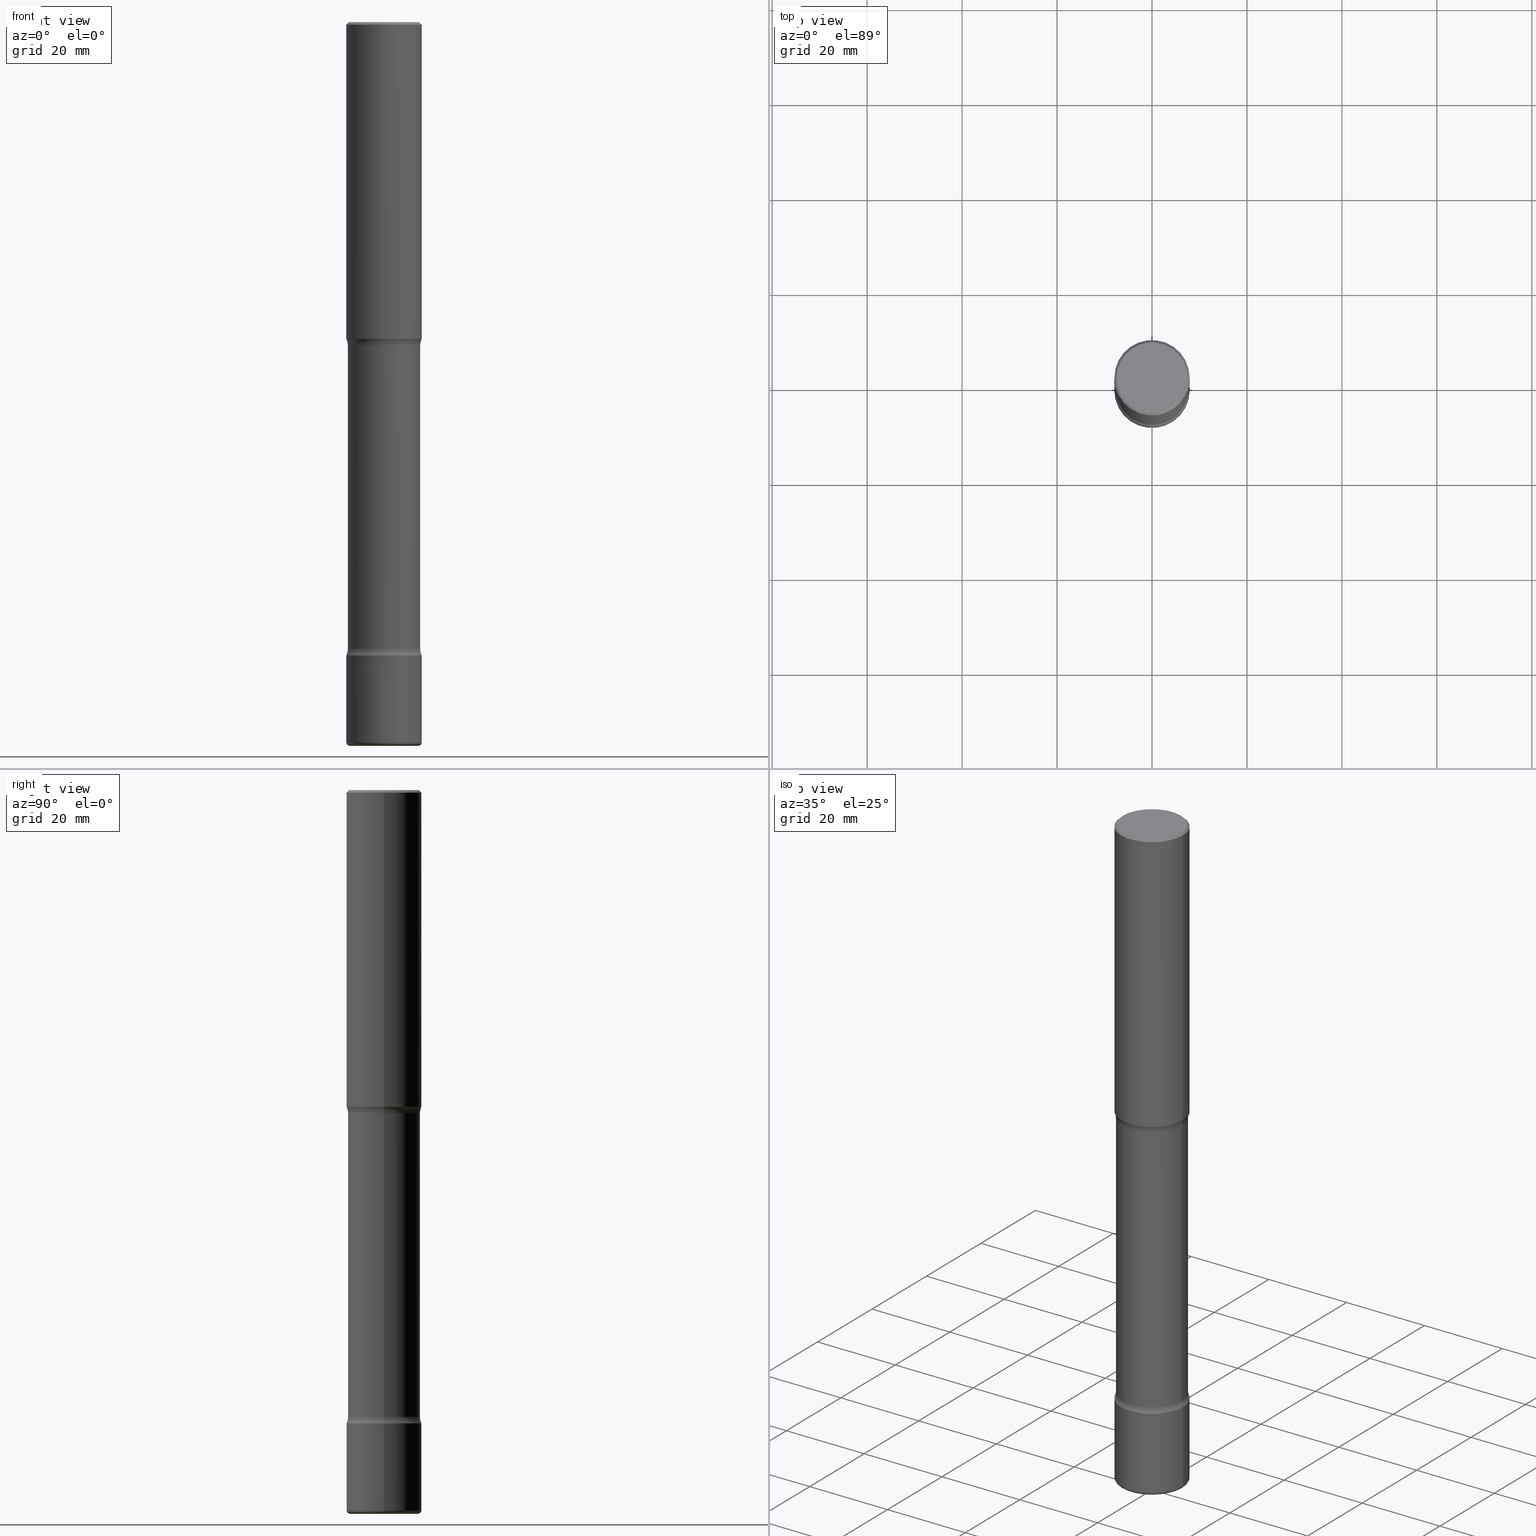
[diagram: canonical four-view strip — front | top / right | iso, engineering-drawing reading convention]
A machine part, canonical four-view strip (front | top / right | iso — engineering-drawing reading convention). The complete STEP part file that produces these views, byte-faithful:
ISO-10303-21;
HEADER;
FILE_DESCRIPTION (( 'STEP AP203' ),
    '1' );
FILE_NAME ('32851.STEP',
    '2023-03-11T07:07:10',
    ( '' ),
    ( '' ),
    'SwSTEP 2.0',
    'SolidWorks 2022',
    '' );
FILE_SCHEMA (( 'CONFIG_CONTROL_DESIGN' ));
ENDSEC;

DATA;
#1 = DIRECTION ( 'NONE',  ( 1.000000000000000000, -6.982962677686261189E-15, 0.000000000000000000 ) ) ;
#2 = VERTEX_POINT ( 'NONE', #332 ) ;
#3 = PERSON_AND_ORGANIZATION ( #345, #514 ) ;
#4 = FACE_OUTER_BOUND ( 'NONE', #72, .T. ) ;
#5 = CIRCLE ( 'NONE', #458, 0.3125000000000000000 ) ;
#6 = DIRECTION ( 'NONE',  ( -1.000000000000000000, 6.982962677686265133E-15, 0.000000000000000000 ) ) ;
#7 = ORIENTED_EDGE ( 'NONE', *, *, #466, .T. ) ;
#8 = AXIS2_PLACEMENT_3D ( 'NONE', #471, #27, #719 ) ;
#9 = LINE ( 'NONE', #701, #633 ) ;
#10 = DIRECTION ( 'NONE',  ( -2.445468806185136597E-29, 3.491481338843145583E-15, 1.000000000000000000 ) ) ;
#11 = CARTESIAN_POINT ( 'NONE',  ( 1.283871123247196489E-28, -1.833027702892651007E-14, -5.249999999999999112 ) ) ;
#12 = DIRECTION ( 'NONE',  ( -2.445468806185136877E-29, 3.491481338843145188E-15, 1.000000000000000000 ) ) ;
#13 = ORIENTED_EDGE ( 'NONE', *, *, #718, .F. ) ;
#14 = EDGE_CURVE ( 'NONE', #407, #409, #516, .T. ) ;
#15 = DIRECTION ( 'NONE',  ( 1.000000000000000000, -6.982962677686269077E-15, 4.883557194083113462E-29 ) ) ;
#16 = MANIFOLD_SOLID_BREP ( 'Body-Move/Copy2[1]', #746 ) ;
#17 = CIRCLE ( 'NONE', #200, 0.3125000000000000000 ) ;
#18 = EDGE_LOOP ( 'NONE', ( #640, #298, #682, #402 ) ) ;
#19 = FACE_OUTER_BOUND ( 'NONE', #482, .T. ) ;
#20 = AXIS2_PLACEMENT_3D ( 'NONE', #300, #128, #112 ) ;
#21 = APPROVAL_PERSON_ORGANIZATION ( #412, #773, #574 ) ;
#22 = PLANE ( 'NONE',  #203 ) ;
#23 = DIRECTION ( 'NONE',  ( -2.445468806185136597E-29, 3.491481338843145583E-15, 1.000000000000000000 ) ) ;
#24 = CC_DESIGN_DATE_AND_TIME_ASSIGNMENT ( #795, #498, ( #717 ) ) ;
#25 = LINE ( 'NONE', #93, #89 ) ;
#26 = EDGE_LOOP ( 'NONE', ( #368, #502 ) ) ;
#27 = DIRECTION ( 'NONE',  ( 2.438088387897960049E-29, -3.491481338843145188E-15, -1.000000000000000000 ) ) ;
#28 = EDGE_CURVE ( 'NONE', #50, #407, #171, .T. ) ;
#29 = DIRECTION ( 'NONE',  ( -1.000000000000000000, 6.982962677686265922E-15, -4.876176775795935793E-29 ) ) ;
#30 = AXIS2_PLACEMENT_3D ( 'NONE', #280, #534, #276 ) ;
#31 = CIRCLE ( 'NONE', #20, 0.3124999999999996669 ) ;
#32 = EDGE_LOOP ( 'NONE', ( #568, #7, #670, #382 ) ) ;
#33 = CARTESIAN_POINT ( 'NONE',  ( 1.465135667692520941E-28, -2.091825432278548311E-14, -5.991226156665199198 ) ) ;
#34 = VECTOR ( 'NONE', #156, 39.37007874015748143 ) ;
#35 = EDGE_CURVE ( 'NONE', #444, #220, #629, .T. ) ;
#36 = ORIENTED_EDGE ( 'NONE', *, *, #28, .F. ) ;
#37 = CARTESIAN_POINT ( 'NONE',  ( 0.4250000000000001554, -2.105575099898847407E-14, -5.195513763205741320 ) ) ;
#38 = EDGE_LOOP ( 'NONE', ( #13, #229, #121 ) ) ;
#39 = DIRECTION ( 'NONE',  ( -1.000000000000000000, 6.860497997771529985E-15, 0.000000000000000000 ) ) ;
#40 = MANIFOLD_SOLID_BREP ( 'Body-Move/Copy2[4]', #105 ) ;
#41 = AXIS2_PLACEMENT_3D ( 'NONE', #64, #509, #262 ) ;
#42 = CARTESIAN_POINT ( 'NONE',  ( 0.000000000000000000, 0.000000000000000000, 0.000000000000000000 ) ) ;
#43 = AXIS2_PLACEMENT_3D ( 'NONE', #266, #767, #564 ) ;
#44 = DIRECTION ( 'NONE',  ( 1.000000000000000000, -6.982962677686262766E-15, 0.000000000000000000 ) ) ;
#45 = ORIENTED_EDGE ( 'NONE', *, *, #656, .T. ) ;
#46 = ADVANCED_FACE ( 'NONE', ( #720 ), #376, .F. ) ;
#47 = CALENDAR_DATE ( 2023, 11, 3 ) ;
#48 = CARTESIAN_POINT ( 'NONE',  ( 6.552600008682760916E-29, -9.355376193454202673E-15, -2.679486236794259568 ) ) ;
#49 = EDGE_CURVE ( 'NONE', #589, #422, #327, .T. ) ;
#50 = VERTEX_POINT ( 'NONE', #193 ) ;
#51 = APPROVAL_STATUS ( 'not_yet_approved' ) ;
#52 = DIRECTION ( 'NONE',  ( 2.445468806185136597E-29, -3.491481338843145583E-15, -1.000000000000000000 ) ) ;
#53 = PERSON_AND_ORGANIZATION ( #345, #514 ) ;
#54 = AXIS2_PLACEMENT_3D ( 'NONE', #319, #202, #83 ) ;
#55 = CARTESIAN_POINT ( 'NONE',  ( -0.4250000000000001554, -1.512023272295514421E-14, -5.195513763205741320 ) ) ;
#56 = AXIS2_PLACEMENT_3D ( 'NONE', #646, #131, #561 ) ;
#57 = DATE_AND_TIME ( #619, #365 ) ;
#58 = LINE ( 'NONE', #678, #117 ) ;
#59 = ORIENTED_EDGE ( 'NONE', *, *, #49, .F. ) ;
#60 = DIRECTION ( 'NONE',  ( 2.445468806185136597E-29, -3.491481338843145583E-15, -1.000000000000000000 ) ) ;
#61 = ORIENTED_EDGE ( 'NONE', *, *, #324, .F. ) ;
#62 = DIRECTION ( 'NONE',  ( 0.000000000000000000, 0.000000000000000000, 1.000000000000000000 ) ) ;
#63 = CARTESIAN_POINT ( 'NONE',  ( 0.2824999999999999734, -2.292157498950524274E-14, -6.000000000000000888 ) ) ;
#64 = CARTESIAN_POINT ( 'NONE',  ( 2.565804704681639699E-28, 2.774148849737446454E-17, -5.249999999999999112 ) ) ;
#65 = EDGE_LOOP ( 'NONE', ( #673, #769, #626, #337 ) ) ;
#66 = ORIENTED_EDGE ( 'NONE', *, *, #180, .T. ) ;
#67 = DIRECTION ( 'NONE',  ( -1.000000000000000000, 6.982962677686266711E-15, 0.000000000000000000 ) ) ;
#68 = AXIS2_PLACEMENT_3D ( 'NONE', #48, #237, #151 ) ;
#69 = CIRCLE ( 'NONE', #778, 0.03000000000000029379 ) ;
#70 = CARTESIAN_POINT ( 'NONE',  ( -0.3125000000000000000, -6.944692465212945898E-15, -2.625000000000000444 ) ) ;
#71 = CIRCLE ( 'NONE', #417, 0.3125000000000000000 ) ;
#72 = EDGE_LOOP ( 'NONE', ( #301, #155, #306, #78 ) ) ;
#73 = VERTEX_POINT ( 'NONE', #70 ) ;
#74 = CC_DESIGN_PERSON_AND_ORGANIZATION_ASSIGNMENT ( #358, #735, ( #538 ) ) ;
#75 = DIRECTION ( 'NONE',  ( -0.9993908270190957621, 6.856857904024560415E-15, -0.03489949670249996999 ) ) ;
#76 = ORIENTED_EDGE ( 'NONE', *, *, #14, .F. ) ;
#77 = CYLINDRICAL_SURFACE ( 'NONE', #254, 0.3125000000000000000 ) ;
#78 = ORIENTED_EDGE ( 'NONE', *, *, #750, .F. ) ;
#79 = ORIENTED_EDGE ( 'NONE', *, *, #324, .T. ) ;
#80 = ORIENTED_EDGE ( 'NONE', *, *, #278, .F. ) ;
#81 = FACE_OUTER_BOUND ( 'NONE', #38, .T. ) ;
#82 = EDGE_CURVE ( 'NONE', #638, #508, #17, .T. ) ;
#83 = DIRECTION ( 'NONE',  ( 1.000000000000000000, -6.982962677686266711E-15, 4.876176775795936353E-29 ) ) ;
#84 = CARTESIAN_POINT ( 'NONE',  ( 0.3124999999999999445, -2.047418265323011053E-14, -5.249999999999999112 ) ) ;
#85 = CC_DESIGN_DATE_AND_TIME_ASSIGNMENT ( #478, #247, ( #392 ) ) ;
#86 = VECTOR ( 'NONE', #755, 39.37007874015748143 ) ;
#87 = ORIENTED_EDGE ( 'NONE', *, *, #597, .T. ) ;
#88 = DIRECTION ( 'NONE',  ( 1.000000000000000000, -6.982962677686265922E-15, 4.876176775795935793E-29 ) ) ;
#89 = VECTOR ( 'NONE', #582, 39.37007874015748143 ) ;
#90 = ORIENTED_EDGE ( 'NONE', *, *, #271, .F. ) ;
#91 = AXIS2_PLACEMENT_3D ( 'NONE', #554, #62, #483 ) ;
#92 = COORDINATED_UNIVERSAL_TIME_OFFSET ( 5, 0, .BEHIND. ) ;
#93 = CARTESIAN_POINT ( 'NONE',  ( 0.3000000000000000999, -1.126002731776913978E-14, -2.625000000000000444 ) ) ;
#94 = CARTESIAN_POINT ( 'NONE',  ( 0.000000000000000000, 0.000000000000000000, 0.000000000000000000 ) ) ;
#95 = DIRECTION ( 'NONE',  ( 2.445468806185136597E-29, -3.491481338843145583E-15, -1.000000000000000000 ) ) ;
#96 = CARTESIAN_POINT ( 'NONE',  ( 0.3125000000000000000, -1.130904413876686180E-14, -2.625000000000000444 ) ) ;
#97 = ORIENTED_EDGE ( 'NONE', *, *, #141, .T. ) ;
#98 = DIRECTION ( 'NONE',  ( -1.000000000000000000, 6.982962677686267499E-15, -4.883557194083113462E-29 ) ) ;
#99 = TOROIDAL_SURFACE ( 'NONE', #391, 0.4249999999999998224, 0.1249999999999999584 ) ;
#100 = CARTESIAN_POINT ( 'NONE',  ( 1.270546684002518978E-28, -1.814003934993557190E-14, -5.195513763205741320 ) ) ;
#101 = EDGE_CURVE ( 'NONE', #73, #617, #762, .T. ) ;
#102 = CARTESIAN_POINT ( 'NONE',  ( 1.109296561330329656E-27, -1.583781495528305936E-13, -45.36130489682268063 ) ) ;
#103 = DIRECTION ( 'NONE',  ( -2.445468806185136597E-29, 3.491481338843145583E-15, 1.000000000000000000 ) ) ;
#104 = DIRECTION ( 'NONE',  ( 1.000000000000000000, -6.982962677686262766E-15, 0.000000000000000000 ) ) ;
#105 = CLOSED_SHELL ( 'NONE', ( #802, #722, #765, #493, #782, #149, #581, #194 ) ) ;
#106 = AXIS2_PLACEMENT_3D ( 'NONE', #137, #631, #644 ) ;
#107 = AXIS2_PLACEMENT_3D ( 'NONE', #652, #207, #397 ) ;
#108 = DIRECTION ( 'NONE',  ( 1.000000000000000000, -6.982962677686263555E-15, 0.000000000000000000 ) ) ;
#109 = CONICAL_SURFACE ( 'NONE', #706, 0.3124999999999996669, 0.7853981633974479459 ) ;
#110 = VERTEX_POINT ( 'NONE', #182 ) ;
#111 = PERSON_AND_ORGANIZATION_ROLE ( 'creator' ) ;
#112 = DIRECTION ( 'NONE',  ( 1.000000000000000000, -6.982962677686266711E-15, 0.000000000000000000 ) ) ;
#113 = EDGE_LOOP ( 'NONE', ( #287, #190 ) ) ;
#114 = DIRECTION ( 'NONE',  ( 2.445468806185136877E-29, -3.491481338843145188E-15, -1.000000000000000000 ) ) ;
#115 = CIRCLE ( 'NONE', #535, 0.3000000000000002109 ) ;
#116 = CARTESIAN_POINT ( 'NONE',  ( 6.552600008682760916E-29, -9.355376193454202673E-15, -2.679486236794259568 ) ) ;
#117 = VECTOR ( 'NONE', #371, 39.37007874015748143 ) ;
#118 = CIRCLE ( 'NONE', #228, 0.3125000000000000000 ) ;
#119 = DIRECTION ( 'NONE',  ( -2.445468806185136877E-29, 3.491481338843145188E-15, 1.000000000000000000 ) ) ;
#120 = ADVANCED_FACE ( 'NONE', ( #19 ), #367, .T. ) ;
#121 = ORIENTED_EDGE ( 'NONE', *, *, #154, .F. ) ;
#122 = DIRECTION ( 'NONE',  ( -1.000000000000000000, 7.105427357601006592E-15, 0.000000000000000000 ) ) ;
#123 = EDGE_LOOP ( 'NONE', ( #357, #331, #794, #435 ) ) ;
#124 = COORDINATED_UNIVERSAL_TIME_OFFSET ( 5, 0, .BEHIND. ) ;
#125 = DIRECTION ( 'NONE',  ( 7.105427357601001859E-15, 1.000000000000000000, -3.491481338843145583E-15 ) ) ;
#126 = ORIENTED_EDGE ( 'NONE', *, *, #211, .T. ) ;
#127 = DIRECTION ( 'NONE',  ( -2.445468806185136597E-29, 3.491481338843145583E-15, 1.000000000000000000 ) ) ;
#128 = DIRECTION ( 'NONE',  ( -2.445468806185136597E-29, 3.491481338843145583E-15, 1.000000000000000000 ) ) ;
#129 = PLANE ( 'NONE',  #730 ) ;
#130 = VERTEX_POINT ( 'NONE', #501 ) ;
#131 = DIRECTION ( 'NONE',  ( -2.445468806185136597E-29, 3.491481338843145583E-15, 1.000000000000000000 ) ) ;
#132 = AXIS2_PLACEMENT_3D ( 'NONE', #389, #789, #88 ) ;
#133 = CIRCLE ( 'NONE', #290, 0.3125000000000000000 ) ;
#134 = CARTESIAN_POINT ( 'NONE',  ( -0.2999999999999999334, -7.260487390148322660E-15, -2.679486236794259568 ) ) ;
#135 = CIRCLE ( 'NONE', #596, 0.03000000000000029379 ) ;
#136 = FACE_OUTER_BOUND ( 'NONE', #198, .T. ) ;
#137 = CARTESIAN_POINT ( 'NONE',  ( -0.4250000000000001554, -1.517228021191890539E-14, -5.195513763205741320 ) ) ;
#138 = VERTEX_POINT ( 'NONE', #429 ) ;
#139 = CC_DESIGN_PERSON_AND_ORGANIZATION_ASSIGNMENT ( #423, #111, ( #392 ) ) ;
#140 = DIRECTION ( 'NONE',  ( -2.438088387897960049E-29, 3.491481338843145188E-15, 1.000000000000000000 ) ) ;
#141 = EDGE_CURVE ( 'NONE', #246, #444, #403, .T. ) ;
#142 = FACE_OUTER_BOUND ( 'NONE', #258, .T. ) ;
#143 = VERTEX_POINT ( 'NONE', #436 ) ;
#144 = ORIENTED_EDGE ( 'NONE', *, *, #427, .F. ) ;
#145 = FACE_OUTER_BOUND ( 'NONE', #419, .T. ) ;
#146 = AXIS2_PLACEMENT_3D ( 'NONE', #567, #386, #122 ) ;
#147 = DIRECTION ( 'NONE',  ( 2.445468806185136597E-29, -3.491481338843145583E-15, -1.000000000000000000 ) ) ;
#148 = AXIS2_PLACEMENT_3D ( 'NONE', #116, #361, #613 ) ;
#149 = ADVANCED_FACE ( 'NONE', ( #553 ), #129, .F. ) ;
#150 = DIRECTION ( 'NONE',  ( 1.000000000000000000, -6.982962677686266711E-15, 4.876067333457696203E-29 ) ) ;
#151 = DIRECTION ( 'NONE',  ( 1.000000000000000000, -6.982962677686269866E-15, 0.000000000000000000 ) ) ;
#152 = CARTESIAN_POINT ( 'NONE',  ( 0.3000000000000000999, -2.297640372211694384E-14, -5.991226156665199198 ) ) ;
#153 = ORIENTED_EDGE ( 'NONE', *, *, #707, .F. ) ;
#154 = EDGE_CURVE ( 'NONE', #143, #167, #614, .T. ) ;
#155 = ORIENTED_EDGE ( 'NONE', *, *, #356, .T. ) ;
#156 = DIRECTION ( 'NONE',  ( 0.9993908270190957621, -6.978169709227537544E-15, -0.03489949670249996999 ) ) ;
#157 = ORIENTED_EDGE ( 'NONE', *, *, #565, .T. ) ;
#158 = CIRCLE ( 'NONE', #662, 0.1249999999999999584 ) ;
#159 = PRODUCT_DEFINITION_FORMATION_WITH_SPECIFIED_SOURCE ( 'ANY', '', #538, .NOT_KNOWN. ) ;
#160 = EDGE_LOOP ( 'NONE', ( #506, #584, #418, #153 ) ) ;
#161 = DIRECTION ( 'NONE',  ( 1.000000000000000000, -6.982962677686262766E-15, 0.000000000000000000 ) ) ;
#162 = EDGE_CURVE ( 'NONE', #422, #453, #712, .T. ) ;
#163 = EDGE_LOOP ( 'NONE', ( #751, #703, #645, #233 ) ) ;
#164 = CYLINDRICAL_SURFACE ( 'NONE', #547, 0.3000000000000000999 ) ;
#165 = ADVANCED_FACE ( 'NONE', ( #270 ), #317, .F. ) ;
#166 = CARTESIAN_POINT ( 'NONE',  ( 2.042516583223230173E-15, 0.2924999999999995937, -1.016989779121518407E-15 ) ) ;
#167 = VERTEX_POINT ( 'NONE', #505 ) ;
#168 = ORIENTED_EDGE ( 'NONE', *, *, #278, .T. ) ;
#169 = DIRECTION ( 'NONE',  ( -2.445468806185136597E-29, 3.491481338843145583E-15, 1.000000000000000000 ) ) ;
#170 = CARTESIAN_POINT ( 'NONE',  ( 6.419355616235984688E-29, -9.165138514463258190E-15, -2.625000000000000444 ) ) ;
#171 = CIRCLE ( 'NONE', #590, 0.3125000000000000000 ) ;
#172 = EDGE_LOOP ( 'NONE', ( #61, #80 ) ) ;
#173 =( NAMED_UNIT ( * ) SI_UNIT ( $, .STERADIAN. ) SOLID_ANGLE_UNIT ( ) );
#174 = AXIS2_PLACEMENT_3D ( 'NONE', #396, #261, #320 ) ;
#175 = LINE ( 'NONE', #442, #497 ) ;
#176 = APPLICATION_PROTOCOL_DEFINITION ( 'international standard', 'config_control_design', 1994, #580 ) ;
#177 = DIRECTION ( 'NONE',  ( -2.445468806185136597E-29, 3.491481338843145583E-15, 1.000000000000000000 ) ) ;
#178 = PRODUCT_DEFINITION_SHAPE ( 'NONE', 'NONE',  #392 ) ;
#179 = EDGE_LOOP ( 'NONE', ( #208, #494, #380 ) ) ;
#180 = EDGE_CURVE ( 'NONE', #50, #570, #759, .T. ) ;
#181 = CARTESIAN_POINT ( 'NONE',  ( 0.3124999999999998890, -2.182175836776957558E-15, 1.523805242436229235E-29 ) ) ;
#182 = CARTESIAN_POINT ( 'NONE',  ( -0.2824999999999999734, -1.878265117408992885E-14, -6.000000000000000888 ) ) ;
#183 = ORIENTED_EDGE ( 'NONE', *, *, #466, .F. ) ;
#184 = PERSON_AND_ORGANIZATION ( #345, #514 ) ;
#185 = CIRCLE ( 'NONE', #30, 0.3124999999999996669 ) ;
#186 = CARTESIAN_POINT ( 'NONE',  ( -0.4249999999999998224, -6.387617055437540110E-15, -2.679486236794259568 ) ) ;
#187 = AXIS2_PLACEMENT_3D ( 'NONE', #643, #521, #150 ) ;
#188 = AXIS2_PLACEMENT_3D ( 'NONE', #658, #401, #98 ) ;
#189 = ORIENTED_EDGE ( 'NONE', *, *, #14, .T. ) ;
#190 = ORIENTED_EDGE ( 'NONE', *, *, #82, .F. ) ;
#191 = CARTESIAN_POINT ( 'NONE',  ( 0.3124999999999999445, -2.051245286570346684E-14, -5.249999999999999112 ) ) ;
#192 = CARTESIAN_POINT ( 'NONE',  ( 0.3000000000000002109, -2.023492815324145191E-14, -5.195513763205741320 ) ) ;
#193 = CARTESIAN_POINT ( 'NONE',  ( -0.3125000000000001665, -1.862369754364326626E-14, -5.969999999999999751 ) ) ;
#194 = ADVANCED_FACE ( 'NONE', ( #622 ), #681, .T. ) ;
#195 = ORIENTED_EDGE ( 'NONE', *, *, #723, .F. ) ;
#196 = CARTESIAN_POINT ( 'NONE',  ( -0.3125000000000000000, -2.397038021369746085E-15, -2.625000000000000444 ) ) ;
#197 = DIRECTION ( 'NONE',  ( -2.445468806185136597E-29, 3.491481338843145583E-15, 1.000000000000000000 ) ) ;
#198 = EDGE_LOOP ( 'NONE', ( #558, #90 ) ) ;
#199 = CARTESIAN_POINT ( 'NONE',  ( 1.270546684002518978E-28, -1.814003934993557190E-14, -5.195513763205741320 ) ) ;
#200 = AXIS2_PLACEMENT_3D ( 'NONE', #312, #197, #321 ) ;
#201 = AXIS2_PLACEMENT_3D ( 'NONE', #215, #462, #273 ) ;
#202 = DIRECTION ( 'NONE',  ( -2.445468806185136597E-29, 3.491481338843145583E-15, 1.000000000000000000 ) ) ;
#203 = AXIS2_PLACEMENT_3D ( 'NONE', #206, #140, #696 ) ;
#204 = APPROVAL ( #51, 'UNSPECIFIED' ) ;
#205 = CALENDAR_DATE ( 2023, 11, 3 ) ;
#206 = CARTESIAN_POINT ( 'NONE',  ( 1.467281283711081958E-28, -2.094888803305887271E-14, -6.000000000000000888 ) ) ;
#207 = DIRECTION ( 'NONE',  ( -2.445468806185136597E-29, 3.491481338843145583E-15, 1.000000000000000000 ) ) ;
#208 = ORIENTED_EDGE ( 'NONE', *, *, #503, .F. ) ;
#209 = ORIENTED_EDGE ( 'NONE', *, *, #750, .T. ) ;
#210 = DIRECTION ( 'NONE',  ( -2.445468806185136597E-29, 3.491481338843145583E-15, 1.000000000000000000 ) ) ;
#211 = EDGE_CURVE ( 'NONE', #2, #333, #377, .T. ) ;
#212 = PLANE ( 'NONE',  #132 ) ;
#213 = ORIENTED_EDGE ( 'NONE', *, *, #642, .T. ) ;
#214 = CARTESIAN_POINT ( 'NONE',  ( 6.552600008682760916E-29, -9.355376193454202673E-15, -2.679486236794259568 ) ) ;
#215 = CARTESIAN_POINT ( 'NONE',  ( 1.270546684002518978E-28, -1.814003934993557190E-14, -5.195513763205741320 ) ) ;
#216 = CC_DESIGN_SECURITY_CLASSIFICATION ( #717, ( #159 ) ) ;
#217 = DIRECTION ( 'NONE',  ( -1.000000000000000000, 6.982962677686265922E-15, 0.000000000000000000 ) ) ;
#218 = CC_DESIGN_PERSON_AND_ORGANIZATION_ASSIGNMENT ( #53, #543, ( #159 ) ) ;
#219 = CARTESIAN_POINT ( 'NONE',  ( 1.270546684002518978E-28, -1.814003934993557190E-14, -5.195513763205741320 ) ) ;
#220 = VERTEX_POINT ( 'NONE', #191 ) ;
#221 = DIRECTION ( 'NONE',  ( 1.000000000000000000, -6.982962677686199657E-15, 0.000000000000000000 ) ) ;
#222 = ORIENTED_EDGE ( 'NONE', *, *, #519, .F. ) ;
#223 = VERTEX_POINT ( 'NONE', #134 ) ;
#224 = DIRECTION ( 'NONE',  ( 1.000000000000000000, -6.982962677686262766E-15, 0.000000000000000000 ) ) ;
#225 = ADVANCED_FACE ( 'NONE', ( #763 ), #77, .T. ) ;
#226 = AXIS2_PLACEMENT_3D ( 'NONE', #739, #685, #753 ) ;
#227 = EDGE_CURVE ( 'NONE', #246, #617, #625, .T. ) ;
#228 = AXIS2_PLACEMENT_3D ( 'NONE', #539, #169, #665 ) ;
#229 = ORIENTED_EDGE ( 'NONE', *, *, #503, .T. ) ;
#230 = DIRECTION ( 'NONE',  ( -2.445468806185136597E-29, 3.491481338843145583E-15, 1.000000000000000000 ) ) ;
#231 = CARTESIAN_POINT ( 'NONE',  ( 1.467281283711081958E-28, -2.094888803305887271E-14, -6.000000000000000888 ) ) ;
#232 = EDGE_CURVE ( 'NONE', #444, #246, #115, .T. ) ;
#233 = ORIENTED_EDGE ( 'NONE', *, *, #649, .F. ) ;
#234 = ORIENTED_EDGE ( 'NONE', *, *, #734, .F. ) ;
#235 = ORIENTED_EDGE ( 'NONE', *, *, #740, .T. ) ;
#236 = DIRECTION ( 'NONE',  ( -1.000000000000000000, 6.982962677686262766E-15, 0.000000000000000000 ) ) ;
#237 = DIRECTION ( 'NONE',  ( -2.445468806185136597E-29, 3.491481338843145583E-15, 1.000000000000000000 ) ) ;
#238 = ADVANCED_FACE ( 'NONE', ( #413 ), #725, .F. ) ;
#239 = DESIGN_CONTEXT ( 'detailed design', #715, 'design' ) ;
#240 = FACE_OUTER_BOUND ( 'NONE', #624, .T. ) ;
#241 = EDGE_LOOP ( 'NONE', ( #756, #235, #353, #59 ) ) ;
#242 = CIRCLE ( 'NONE', #608, 0.3125000000000000000 ) ;
#243 = CYLINDRICAL_SURFACE ( 'NONE', #680, 0.3000000000000000999 ) ;
#244 = VECTOR ( 'NONE', #114, 39.37007874015748143 ) ;
#245 = EDGE_CURVE ( 'NONE', #430, #666, #185, .T. ) ;
#246 = VERTEX_POINT ( 'NONE', #355 ) ;
#247 = DATE_TIME_ROLE ( 'creation_date' ) ;
#248 = ADVANCED_FACE ( 'NONE', ( #472 ), #212, .T. ) ;
#249 = CARTESIAN_POINT ( 'NONE',  ( 6.552600008682760916E-29, -9.355376193454202673E-15, -2.679486236794259568 ) ) ;
#250 = DIRECTION ( 'NONE',  ( -2.445468806185136597E-29, 3.491481338843145583E-15, 1.000000000000000000 ) ) ;
#251 = DIRECTION ( 'NONE',  ( -2.438088387897960049E-29, 3.491481338843145188E-15, 1.000000000000000000 ) ) ;
#252 = APPROVAL_DATE_TIME ( #307, #517 ) ;
#253 = PRODUCT_RELATED_PRODUCT_CATEGORY ( 'detail', '', ( #538 ) ) ;
#254 = AXIS2_PLACEMENT_3D ( 'NONE', #686, #127, #372 ) ;
#255 = DIMENSIONAL_EXPONENTS ( 1.000000000000000000, 0.000000000000000000, 0.000000000000000000, 0.000000000000000000, 0.000000000000000000, 0.000000000000000000, 0.000000000000000000 ) ;
#256 = DIRECTION ( 'NONE',  ( 1.000000000000000000, -6.982962677686269077E-15, 4.883557194083113462E-29 ) ) ;
#257 = TOROIDAL_SURFACE ( 'NONE', #188, 0.4250000000000001554, 0.1250000000000000000 ) ;
#258 = EDGE_LOOP ( 'NONE', ( #425, #311, #168, #470 ) ) ;
#259 = DIRECTION ( 'NONE',  ( 2.445468806185136597E-29, -3.491481338843145583E-15, -1.000000000000000000 ) ) ;
#260 = ORIENTED_EDGE ( 'NONE', *, *, #227, .F. ) ;
#261 = DIRECTION ( 'NONE',  ( -2.445468806185136597E-29, 3.491481338843145583E-15, 1.000000000000000000 ) ) ;
#262 = DIRECTION ( 'NONE',  ( -1.000000000000000000, 6.982962677686265922E-15, -4.876176775795935793E-29 ) ) ;
#263 = DIRECTION ( 'NONE',  ( 2.445468806185136597E-29, -3.491481338843145583E-15, -1.000000000000000000 ) ) ;
#264 = CARTESIAN_POINT ( 'NONE',  ( 1.465135667692520941E-28, -2.091825432278548311E-14, -5.991226156665199198 ) ) ;
#265 = APPROVAL_STATUS ( 'not_yet_approved' ) ;
#266 = CARTESIAN_POINT ( 'NONE',  ( 0.4249999999999998224, -1.232313533147086445E-14, -2.679486236794259568 ) ) ;
#267 = AXIS2_PLACEMENT_3D ( 'NONE', #323, #10, #1 ) ;
#268 = TOROIDAL_SURFACE ( 'NONE', #416, 0.4249999999999998224, 0.1249999999999999584 ) ;
#269 = LOCAL_TIME ( 2, 7, 10.00000000000000000, #743 ) ;
#270 = FACE_OUTER_BOUND ( 'NONE', #653, .T. ) ;
#271 = EDGE_CURVE ( 'NONE', #110, #375, #350, .T. ) ;
#272 = FACE_OUTER_BOUND ( 'NONE', #163, .T. ) ;
#273 = DIRECTION ( 'NONE',  ( 1.000000000000000000, -6.982962677686263555E-15, 4.883557194083111780E-29 ) ) ;
#274 = FACE_OUTER_BOUND ( 'NONE', #573, .T. ) ;
#275 = ORIENTED_EDGE ( 'NONE', *, *, #476, .F. ) ;
#276 = DIRECTION ( 'NONE',  ( 1.000000000000000000, -6.982962677686266711E-15, 0.000000000000000000 ) ) ;
#277 = EDGE_CURVE ( 'NONE', #333, #2, #777, .T. ) ;
#278 = EDGE_CURVE ( 'NONE', #138, #220, #5, .T. ) ;
#279 = DIRECTION ( 'NONE',  ( 1.000000000000000000, -6.982962677686266711E-15, 4.876176775795935232E-29 ) ) ;
#280 = CARTESIAN_POINT ( 'NONE',  ( 4.890937612370289799E-31, -6.982962677686315028E-17, -0.02000000000000006981 ) ) ;
#281 = EDGE_CURVE ( 'NONE', #167, #143, #593, .T. ) ;
#282 = CIRCLE ( 'NONE', #148, 0.2999999999999999334 ) ;
#283 = AXIS2_PLACEMENT_3D ( 'NONE', #348, #230, #161 ) ;
#284 = FACE_OUTER_BOUND ( 'NONE', #454, .T. ) ;
#285 = DIRECTION ( 'NONE',  ( -1.000000000000000000, 6.982962677686266711E-15, 0.000000000000000000 ) ) ;
#286 = EDGE_CURVE ( 'NONE', #617, #342, #415, .T. ) ;
#287 = ORIENTED_EDGE ( 'NONE', *, *, #455, .F. ) ;
#288 = CARTESIAN_POINT ( 'NONE',  ( 0.2824999999999999734, -2.281683054933994621E-14, -5.969999999999999751 ) ) ;
#289 = AXIS2_PLACEMENT_3D ( 'NONE', #231, #671, #108 ) ;
#290 = AXIS2_PLACEMENT_3D ( 'NONE', #378, #210, #636 ) ;
#291 = CC_DESIGN_APPROVAL ( #773, ( #717 ) ) ;
#292 = DIRECTION ( 'NONE',  ( 2.445468806185136597E-29, -3.491481338843145583E-15, -1.000000000000000000 ) ) ;
#293 = CARTESIAN_POINT ( 'NONE',  ( -0.2824999999999999734, -1.883686036437129492E-14, -5.969999999999999751 ) ) ;
#294 = ADVANCED_FACE ( 'NONE', ( #768 ), #647, .T. ) ;
#295 = ORIENTED_EDGE ( 'NONE', *, *, #723, .T. ) ;
#296 = CALENDAR_DATE ( 2023, 11, 3 ) ;
#297 = FACE_OUTER_BOUND ( 'NONE', #510, .T. ) ;
#298 = ORIENTED_EDGE ( 'NONE', *, *, #571, .T. ) ;
#299 = PERSON_AND_ORGANIZATION ( #345, #514 ) ;
#300 = CARTESIAN_POINT ( 'NONE',  ( 4.890937612370289799E-31, -6.982962677686315028E-17, -0.02000000000000006981 ) ) ;
#301 = ORIENTED_EDGE ( 'NONE', *, *, #604, .T. ) ;
#302 = ADVANCED_FACE ( 'NONE', ( #721 ), #475, .F. ) ;
#303 = AXIS2_PLACEMENT_3D ( 'NONE', #440, #177, #424 ) ;
#304 = CIRCLE ( 'NONE', #788, 0.2999999999999999334 ) ;
#305 = DIRECTION ( 'NONE',  ( -2.445468806185136597E-29, 3.491481338843145583E-15, 1.000000000000000000 ) ) ;
#306 = ORIENTED_EDGE ( 'NONE', *, *, #709, .F. ) ;
#307 = DATE_AND_TIME ( #296, #269 ) ;
#308 = CARTESIAN_POINT ( 'NONE',  ( 0.3000000000000002109, -2.033618570124857473E-14, -5.195513763205741320 ) ) ;
#309 = DIRECTION ( 'NONE',  ( -2.445468806185136597E-29, 3.491481338843145583E-15, 1.000000000000000000 ) ) ;
#310 = CC_DESIGN_PERSON_AND_ORGANIZATION_ASSIGNMENT ( #184, #433, ( #717 ) ) ;
#311 = ORIENTED_EDGE ( 'NONE', *, *, #427, .T. ) ;
#312 = CARTESIAN_POINT ( 'NONE',  ( 6.419355616235984688E-29, -9.165138514463258190E-15, -2.625000000000000444 ) ) ;
#313 = ORIENTED_EDGE ( 'NONE', *, *, #571, .F. ) ;
#314 =( LENGTH_UNIT ( ) NAMED_UNIT ( * ) SI_UNIT ( $, .METRE. ) );
#315 = ADVANCED_FACE ( 'NONE', ( #452 ), #335, .T. ) ;
#316 = CARTESIAN_POINT ( 'NONE',  ( 6.552600008682760916E-29, -9.355376193454202673E-15, -2.679486236794259568 ) ) ;
#317 = PLANE ( 'NONE',  #41 ) ;
#318 = ORIENTED_EDGE ( 'NONE', *, *, #447, .F. ) ;
#319 = CARTESIAN_POINT ( 'NONE',  ( 0.000000000000000000, 0.000000000000000000, 0.000000000000000000 ) ) ;
#320 = DIRECTION ( 'NONE',  ( 1.000000000000000000, -6.982962677686263555E-15, 0.000000000000000000 ) ) ;
#321 = DIRECTION ( 'NONE',  ( 1.000000000000000000, -6.982962677686269077E-15, 0.000000000000000000 ) ) ;
#322 = DIRECTION ( 'NONE',  ( -2.445468806185136597E-29, 3.491481338843145583E-15, 1.000000000000000000 ) ) ;
#323 = CARTESIAN_POINT ( 'NONE',  ( 1.467281283711081958E-28, -2.094888803305887271E-14, -6.000000000000000888 ) ) ;
#324 = EDGE_CURVE ( 'NONE', #220, #138, #714, .T. ) ;
#325 = ADVANCED_FACE ( 'NONE', ( #142 ), #559, .F. ) ;
#326 = CARTESIAN_POINT ( 'NONE',  ( 0.3124999999999996669, -2.213735251080464545E-15, -0.02000000000000006981 ) ) ;
#327 = CIRCLE ( 'NONE', #106, 0.1250000000000000000 ) ;
#328 = CIRCLE ( 'NONE', #303, 0.3125000000000000000 ) ;
#329 = VECTOR ( 'NONE', #533, 39.37007874015748143 ) ;
#330 = DIRECTION ( 'NONE',  ( -2.438088387897960049E-29, 3.491481338843145188E-15, 1.000000000000000000 ) ) ;
#331 = ORIENTED_EDGE ( 'NONE', *, *, #806, .T. ) ;
#332 = CARTESIAN_POINT ( 'NONE',  ( -0.3125000000000000000, -6.982962677686299843E-15, -2.625000000000000444 ) ) ;
#333 = VERTEX_POINT ( 'NONE', #96 ) ;
#334 = CARTESIAN_POINT ( 'NONE',  ( 0.2924999999999995937, -2.110215457714317564E-15, 8.537024980215342529E-18 ) ) ;
#335 = CYLINDRICAL_SURFACE ( 'NONE', #460, 0.3124999999999998890 ) ;
#336 = FACE_OUTER_BOUND ( 'NONE', #32, .T. ) ;
#337 = ORIENTED_EDGE ( 'NONE', *, *, #162, .T. ) ;
#338 = DIRECTION ( 'NONE',  ( -1.000000000000000000, 7.105427357601050768E-15, 0.000000000000000000 ) ) ;
#339 = DIRECTION ( 'NONE',  ( 2.445468806185136597E-29, -3.491481338843145583E-15, -1.000000000000000000 ) ) ;
#340 = AXIS2_PLACEMENT_3D ( 'NONE', #775, #411, #104 ) ;
#341 = AXIS2_PLACEMENT_3D ( 'NONE', #37, #592, #39 ) ;
#342 = VERTEX_POINT ( 'NONE', #520 ) ;
#343 = CARTESIAN_POINT ( 'NONE',  ( 1.283871123247196489E-28, -1.833027702892651007E-14, -5.249999999999999112 ) ) ;
#344 = EDGE_CURVE ( 'NONE', #632, #589, #242, .T. ) ;
#345 = PERSON ( 'UNSPECIFIED', 'UNSPECIFIED', 'UNSPECIFIED', ('UNSPECIFIED'), ('UNSPECIFIED'), ('UNSPECIFIED') ) ;
#346 = VERTEX_POINT ( 'NONE', #708 ) ;
#347 = EDGE_LOOP ( 'NONE', ( #630, #530 ) ) ;
#348 = CARTESIAN_POINT ( 'NONE',  ( 1.459944877292526494E-28, -2.084414359289357934E-14, -5.969999999999999751 ) ) ;
#349 = CARTESIAN_POINT ( 'NONE',  ( 1.283871123247196489E-28, -1.833027702892651007E-14, -5.249999999999999112 ) ) ;
#350 = CIRCLE ( 'NONE', #289, 0.2824999999999999734 ) ;
#351 = AXIS2_PLACEMENT_3D ( 'NONE', #199, #651, #388 ) ;
#352 = CONICAL_SURFACE ( 'NONE', #481, 1127.411546571512872, 1.535889741755011029 ) ;
#353 = ORIENTED_EDGE ( 'NONE', *, *, #707, .T. ) ;
#354 = APPLICATION_PROTOCOL_DEFINITION ( 'international standard', 'config_control_design', 1994, #715 ) ;
#355 = CARTESIAN_POINT ( 'NONE',  ( -0.3000000000000002109, -1.605912106116573479E-14, -5.195513763205741320 ) ) ;
#356 = EDGE_CURVE ( 'NONE', #110, #50, #69, .T. ) ;
#357 = ORIENTED_EDGE ( 'NONE', *, *, #519, .T. ) ;
#358 = PERSON_AND_ORGANIZATION ( #345, #514 ) ;
#359 = DIRECTION ( 'NONE',  ( -6.982962677686266711E-15, -1.000000000000000000, 3.491481338843145583E-15 ) ) ;
#360 = SECURITY_CLASSIFICATION_LEVEL ( 'unclassified' ) ;
#361 = DIRECTION ( 'NONE',  ( -2.445468806185136597E-29, 3.491481338843145583E-15, 1.000000000000000000 ) ) ;
#362 = ADVANCED_FACE ( 'NONE', ( #540 ), #555, .T. ) ;
#363 = AXIS2_PLACEMENT_3D ( 'NONE', #694, #259, #572 ) ;
#364 = AXIS2_PLACEMENT_3D ( 'NONE', #500, #801, #421 ) ;
#365 = LOCAL_TIME ( 2, 7, 10.00000000000000000, #610 ) ;
#366 = FACE_OUTER_BOUND ( 'NONE', #700, .T. ) ;
#367 = CYLINDRICAL_SURFACE ( 'NONE', #54, 0.3125000000000000000 ) ;
#368 = ORIENTED_EDGE ( 'NONE', *, *, #281, .T. ) ;
#369 = ADVANCED_FACE ( 'NONE', ( #4 ), #432, .T. ) ;
#370 = CALENDAR_DATE ( 2023, 11, 3 ) ;
#371 = DIRECTION ( 'NONE',  ( -2.445468806185136877E-29, 3.491481338843145188E-15, 1.000000000000000000 ) ) ;
#372 = DIRECTION ( 'NONE',  ( 1.000000000000000000, -6.982962677686266711E-15, 4.876176775795936353E-29 ) ) ;
#373 = CARTESIAN_POINT ( 'NONE',  ( -0.2924999999999995937, 2.077431396611661822E-15, 8.537024980186416602E-18 ) ) ;
#374 = CARTESIAN_POINT ( 'NONE',  ( 2.565804704681639699E-28, 2.774148849737446454E-17, -5.249999999999999112 ) ) ;
#375 = VERTEX_POINT ( 'NONE', #63 ) ;
#376 = TOROIDAL_SURFACE ( 'NONE', #679, 0.4250000000000001554, 0.1250000000000000000 ) ;
#377 = CIRCLE ( 'NONE', #786, 0.3125000000000000000 ) ;
#378 = CARTESIAN_POINT ( 'NONE',  ( 1.283871123247196489E-28, -1.833027702892651007E-14, -5.249999999999999112 ) ) ;
#379 = CIRCLE ( 'NONE', #174, 0.2824999999999999734 ) ;
#380 = ORIENTED_EDGE ( 'NONE', *, *, #281, .F. ) ;
#381 = CARTESIAN_POINT ( 'NONE',  ( -0.3000000000000000999, -7.033510307182958105E-15, -2.625000000000000444 ) ) ;
#382 = ORIENTED_EDGE ( 'NONE', *, *, #489, .F. ) ;
#383 = DIRECTION ( 'NONE',  ( 0.7071067811865472397, -7.319954787623254468E-15, -0.7071067811865477948 ) ) ;
#384 = ADVANCED_FACE ( 'NONE', ( #745 ), #448, .T. ) ;
#385 = ORIENTED_EDGE ( 'NONE', *, *, #344, .T. ) ;
#386 = DIRECTION ( 'NONE',  ( 7.105427357601001859E-15, 1.000000000000000000, -3.491481338843145583E-15 ) ) ;
#387 = ORIENTED_EDGE ( 'NONE', *, *, #642, .F. ) ;
#388 = DIRECTION ( 'NONE',  ( -1.000000000000000000, 6.982962677686267499E-15, -4.883557194083113462E-29 ) ) ;
#389 = CARTESIAN_POINT ( 'NONE',  ( 6.419355616235984688E-29, -9.165138514463258190E-15, -2.625000000000000444 ) ) ;
#390 = CARTESIAN_POINT ( 'NONE',  ( 6.552600008682760916E-29, -9.355376193454202673E-15, -2.679486236794259568 ) ) ;
#391 = AXIS2_PLACEMENT_3D ( 'NONE', #249, #674, #737 ) ;
#392 = PRODUCT_DEFINITION ( 'UNKNOWN', '', #159, #239 ) ;
#393 = CIRCLE ( 'NONE', #766, 0.3125000000000000000 ) ;
#394 = DIRECTION ( 'NONE',  ( 1.000000000000000000, -6.982962677686261189E-15, 0.000000000000000000 ) ) ;
#395 = ORIENTED_EDGE ( 'NONE', *, *, #180, .F. ) ;
#396 = CARTESIAN_POINT ( 'NONE',  ( 1.467281283711081958E-28, -2.094888803305887271E-14, -6.000000000000000888 ) ) ;
#397 = DIRECTION ( 'NONE',  ( 1.000000000000000000, -6.982962677686265922E-15, 0.000000000000000000 ) ) ;
#398 = FACE_OUTER_BOUND ( 'NONE', #400, .T. ) ;
#399 = VERTEX_POINT ( 'NONE', #373 ) ;
#400 = EDGE_LOOP ( 'NONE', ( #486, #445 ) ) ;
#401 = DIRECTION ( 'NONE',  ( 2.445468806185136597E-29, -3.491481338843145583E-15, -1.000000000000000000 ) ) ;
#402 = ORIENTED_EDGE ( 'NONE', *, *, #754, .F. ) ;
#403 = CIRCLE ( 'NONE', #511, 0.3000000000000002109 ) ;
#404 = VECTOR ( 'NONE', #383, 39.37007874015748143 ) ;
#405 =( GEOMETRIC_REPRESENTATION_CONTEXT ( 3 ) GLOBAL_UNCERTAINTY_ASSIGNED_CONTEXT ( ( #542 ) ) GLOBAL_UNIT_ASSIGNED_CONTEXT ( ( #684, #728, #173 ) ) REPRESENTATION_CONTEXT ( 'NONE', 'WORKASPACE' ) );
#406 = CIRCLE ( 'NONE', #283, 0.3125000000000000000 ) ;
#407 = VERTEX_POINT ( 'NONE', #549 ) ;
#408 = CARTESIAN_POINT ( 'NONE',  ( 1.465135667692520941E-28, -2.091825432278548311E-14, -5.991226156665199198 ) ) ;
#409 = VERTEX_POINT ( 'NONE', #805 ) ;
#410 = FACE_OUTER_BOUND ( 'NONE', #123, .T. ) ;
#411 = DIRECTION ( 'NONE',  ( -2.445468806185136597E-29, 3.491481338843145583E-15, 1.000000000000000000 ) ) ;
#412 = PERSON_AND_ORGANIZATION ( #345, #514 ) ;
#413 = FACE_OUTER_BOUND ( 'NONE', #113, .T. ) ;
#414 = CLOSED_SHELL ( 'NONE', ( #315, #384, #744, #302, #238, #697 ) ) ;
#415 = CIRCLE ( 'NONE', #68, 0.2999999999999999334 ) ;
#416 = AXIS2_PLACEMENT_3D ( 'NONE', #612, #52, #797 ) ;
#417 = AXIS2_PLACEMENT_3D ( 'NONE', #343, #599, #224 ) ;
#418 = ORIENTED_EDGE ( 'NONE', *, *, #615, .T. ) ;
#419 = EDGE_LOOP ( 'NONE', ( #727, #459, #566, #532 ) ) ;
#420 = ADVANCED_FACE ( 'NONE', ( #297 ), #99, .F. ) ;
#421 = DIRECTION ( 'NONE',  ( -1.000000000000000000, 6.982962677686265922E-15, -4.876176775795935793E-29 ) ) ;
#422 = VERTEX_POINT ( 'NONE', #434 ) ;
#423 = PERSON_AND_ORGANIZATION ( #345, #514 ) ;
#424 = DIRECTION ( 'NONE',  ( 1.000000000000000000, -6.982962677686269077E-15, 0.000000000000000000 ) ) ;
#425 = ORIENTED_EDGE ( 'NONE', *, *, #141, .F. ) ;
#426 = APPROVAL_ROLE ( '' ) ;
#427 = EDGE_CURVE ( 'NONE', #246, #138, #595, .T. ) ;
#428 = CARTESIAN_POINT ( 'NONE',  ( 0.3125000000000000000, -2.182175836776958347E-15, 1.523805242436230075E-29 ) ) ;
#429 = CARTESIAN_POINT ( 'NONE',  ( -0.3124999999999999445, -1.610983097967619699E-14, -5.249999999999999112 ) ) ;
#430 = VERTEX_POINT ( 'NONE', #479 ) ;
#431 = EDGE_CURVE ( 'NONE', #638, #430, #58, .T. ) ;
#432 = TOROIDAL_SURFACE ( 'NONE', #525, 0.2824999999999999734, 0.03000000000000025910 ) ;
#433 = PERSON_AND_ORGANIZATION_ROLE ( 'classification_officer' ) ;
#434 = CARTESIAN_POINT ( 'NONE',  ( -0.3000000000000002109, -1.604515054662969188E-14, -5.195513763205741320 ) ) ;
#435 = ORIENTED_EDGE ( 'NONE', *, *, #615, .F. ) ;
#436 = CARTESIAN_POINT ( 'NONE',  ( 0.2512499999999997513, -2.267258815499897273E-14, -6.000000000000000888 ) ) ;
#437 = ORIENTED_EDGE ( 'NONE', *, *, #649, .T. ) ;
#438 = ADVANCED_FACE ( 'NONE', ( #366 ), #243, .T. ) ;
#439 = ORIENTED_EDGE ( 'NONE', *, *, #35, .T. ) ;
#440 = CARTESIAN_POINT ( 'NONE',  ( 6.419355616235984688E-29, -9.165138514463258190E-15, -2.625000000000000444 ) ) ;
#441 = DIRECTION ( 'NONE',  ( -2.445468806185136597E-29, 3.491481338843145583E-15, 1.000000000000000000 ) ) ;
#442 = CARTESIAN_POINT ( 'NONE',  ( 1.465135667692520941E-28, -2.091825432278548311E-14, -5.991226156665199198 ) ) ;
#443 = DIRECTION ( 'NONE',  ( 2.445468806185136597E-29, -3.491481338843145583E-15, -1.000000000000000000 ) ) ;
#444 = VERTEX_POINT ( 'NONE', #192 ) ;
#445 = ORIENTED_EDGE ( 'NONE', *, *, #277, .F. ) ;
#446 = DIRECTION ( 'NONE',  ( -1.000000000000000000, 6.982962677686269077E-15, 0.000000000000000000 ) ) ;
#447 = EDGE_CURVE ( 'NONE', #508, #666, #488, .T. ) ;
#448 = CONICAL_SURFACE ( 'NONE', #226, 0.3124999999999996669, 0.7853981633974479459 ) ;
#449 = TOROIDAL_SURFACE ( 'NONE', #499, 0.4249999999999998224, 0.1249999999999999584 ) ;
#450 = DIRECTION ( 'NONE',  ( -2.445468806185136597E-29, 3.491481338843145583E-15, 1.000000000000000000 ) ) ;
#451 = DIRECTION ( 'NONE',  ( 2.445468806185136597E-29, -3.491481338843145583E-15, -1.000000000000000000 ) ) ;
#452 = FACE_OUTER_BOUND ( 'NONE', #477, .T. ) ;
#453 = VERTEX_POINT ( 'NONE', #308 ) ;
#454 = EDGE_LOOP ( 'NONE', ( #313, #733, #588, #527 ) ) ;
#455 = EDGE_CURVE ( 'NONE', #508, #638, #328, .T. ) ;
#456 = DIRECTION ( 'NONE',  ( -2.445468806185136597E-29, 3.491481338843145583E-15, 1.000000000000000000 ) ) ;
#457 = CARTESIAN_POINT ( 'NONE',  ( -0.3125000000000000000, -1.736676426165973004E-14, -5.249999999999999112 ) ) ;
#458 = AXIS2_PLACEMENT_3D ( 'NONE', #611, #515, #702 ) ;
#459 = ORIENTED_EDGE ( 'NONE', *, *, #82, .T. ) ;
#460 = AXIS2_PLACEMENT_3D ( 'NONE', #94, #23, #583 ) ;
#461 = CC_DESIGN_APPROVAL ( #517, ( #159 ) ) ;
#462 = DIRECTION ( 'NONE',  ( -2.445468806185136597E-29, 3.491481338843145583E-15, 1.000000000000000000 ) ) ;
#463 = EDGE_LOOP ( 'NONE', ( #395, #655, #189, #387 ) ) ;
#464 = LINE ( 'NONE', #152, #244 ) ;
#465 = DIRECTION ( 'NONE',  ( -2.445468806185136597E-29, 3.491481338843145583E-15, 1.000000000000000000 ) ) ;
#466 = EDGE_CURVE ( 'NONE', #346, #333, #672, .T. ) ;
#467 = VECTOR ( 'NONE', #12, 39.37007874015748143 ) ;
#468 = AXIS2_PLACEMENT_3D ( 'NONE', #577, #322, #15 ) ;
#469 = LOCAL_TIME ( 2, 7, 10.00000000000000000, #92 ) ;
#470 = ORIENTED_EDGE ( 'NONE', *, *, #35, .F. ) ;
#471 = CARTESIAN_POINT ( 'NONE',  ( 6.419355616235984688E-29, -9.165138514463258190E-15, -2.625000000000000444 ) ) ;
#472 = FACE_OUTER_BOUND ( 'NONE', #473, .T. ) ;
#473 = EDGE_LOOP ( 'NONE', ( #295, #87 ) ) ;
#474 = DIRECTION ( 'NONE',  ( -1.000000000000000000, 6.982962677686267499E-15, 0.000000000000000000 ) ) ;
#475 = PLANE ( 'NONE',  #798 ) ;
#476 = EDGE_CURVE ( 'NONE', #666, #430, #31, .T. ) ;
#477 = EDGE_LOOP ( 'NONE', ( #803, #776, #275, #318 ) ) ;
#478 = DATE_AND_TIME ( #47, #537 ) ;
#479 = CARTESIAN_POINT ( 'NONE',  ( -0.3124999999999996669, 2.112346210000092682E-15, -0.02000000000000006981 ) ) ;
#480 = CONICAL_SURFACE ( 'NONE', #650, 1127.411546571512872, 1.535889741755011029 ) ;
#481 = AXIS2_PLACEMENT_3D ( 'NONE', #102, #339, #474 ) ;
#482 = EDGE_LOOP ( 'NONE', ( #772, #66, #234, #76 ) ) ;
#483 = DIRECTION ( 'NONE',  ( 1.000000000000000000, 0.000000000000000000, 0.000000000000000000 ) ) ;
#484 = CARTESIAN_POINT ( 'NONE',  ( 1.459944877292526494E-28, -2.084414359289357934E-14, -5.969999999999999751 ) ) ;
#485 = EDGE_CURVE ( 'NONE', #342, #617, #282, .T. ) ;
#486 = ORIENTED_EDGE ( 'NONE', *, *, #211, .F. ) ;
#487 = APPROVAL_STATUS ( 'not_yet_approved' ) ;
#488 = LINE ( 'NONE', #181, #616 ) ;
#489 = EDGE_CURVE ( 'NONE', #223, #2, #158, .T. ) ;
#490 = APPROVAL_ROLE ( '' ) ;
#491 = DIRECTION ( 'NONE',  ( 1.000000000000000000, -6.982962677686265922E-15, 0.000000000000000000 ) ) ;
#492 = EDGE_CURVE ( 'NONE', #346, #223, #661, .T. ) ;
#493 = ADVANCED_FACE ( 'NONE', ( #240 ), #268, .F. ) ;
#494 = ORIENTED_EDGE ( 'NONE', *, *, #718, .T. ) ;
#495 = ORIENTED_EDGE ( 'NONE', *, *, #489, .T. ) ;
#496 = DIRECTION ( 'NONE',  ( -1.000000000000000000, 6.982962677686265922E-15, 0.000000000000000000 ) ) ;
#497 = VECTOR ( 'NONE', #75, 39.37007874015748143 ) ;
#498 = DATE_TIME_ROLE ( 'classification_date' ) ;
#499 = AXIS2_PLACEMENT_3D ( 'NONE', #713, #779, #787 ) ;
#500 = CARTESIAN_POINT ( 'NONE',  ( 2.565804704681639699E-28, 2.774148849737446454E-17, -5.249999999999999112 ) ) ;
#501 = CARTESIAN_POINT ( 'NONE',  ( 0.3125000000000000000, -1.134731435124021654E-14, -2.625000000000000444 ) ) ;
#502 = ORIENTED_EDGE ( 'NONE', *, *, #154, .T. ) ;
#503 = EDGE_CURVE ( 'NONE', #726, #167, #175, .T. ) ;
#504 = CARTESIAN_POINT ( 'NONE',  ( -0.2999999999999999889, -7.084220225693425032E-15, -2.679486236794259568 ) ) ;
#505 = CARTESIAN_POINT ( 'NONE',  ( -0.2512499999999997513, -1.919441866029020403E-14, -6.000000000000000888 ) ) ;
#506 = ORIENTED_EDGE ( 'NONE', *, *, #806, .F. ) ;
#507 = LINE ( 'NONE', #693, #404 ) ;
#508 = VERTEX_POINT ( 'NONE', #518 ) ;
#509 = DIRECTION ( 'NONE',  ( 2.438088387897960049E-29, -3.491481338843145188E-15, -1.000000000000000000 ) ) ;
#510 = EDGE_LOOP ( 'NONE', ( #601, #195, #437, #695 ) ) ;
#511 = AXIS2_PLACEMENT_3D ( 'NONE', #562, #441, #688 ) ;
#512 = CIRCLE ( 'NONE', #187, 0.2924999999999995937 ) ;
#513 = CARTESIAN_POINT ( 'NONE',  ( -0.3124999999999999445, -1.614810119214955330E-14, -5.249999999999999112 ) ) ;
#514 = ORGANIZATION ( 'UNSPECIFIED', 'UNSPECIFIED', '' ) ;
#515 = DIRECTION ( 'NONE',  ( -2.445468806185136597E-29, 3.491481338843145583E-15, 1.000000000000000000 ) ) ;
#516 = LINE ( 'NONE', #428, #523 ) ;
#517 = APPROVAL ( #487, 'UNSPECIFIED' ) ;
#518 = CARTESIAN_POINT ( 'NONE',  ( 0.3125000000000000000, -1.134731435124021811E-14, -2.625000000000000444 ) ) ;
#519 = EDGE_CURVE ( 'NONE', #223, #346, #304, .T. ) ;
#520 = CARTESIAN_POINT ( 'NONE',  ( 0.2999999999999999334, -1.145026499676008269E-14, -2.679486236794259568 ) ) ;
#521 = DIRECTION ( 'NONE',  ( -2.445468806185136597E-29, 3.491481338843145583E-15, 1.000000000000000000 ) ) ;
#522 = DIRECTION ( 'NONE',  ( 1.000000000000000000, -6.982962677686265922E-15, 4.876176775795935793E-29 ) ) ;
#523 = VECTOR ( 'NONE', #119, 39.37007874015748143 ) ;
#524 = DIRECTION ( 'NONE',  ( 2.445468806185136597E-29, -3.491481338843145583E-15, -1.000000000000000000 ) ) ;
#525 = AXIS2_PLACEMENT_3D ( 'NONE', #484, #305, #256 ) ;
#526 = TOROIDAL_SURFACE ( 'NONE', #578, 0.4249999999999998224, 0.1249999999999999584 ) ;
#527 = ORIENTED_EDGE ( 'NONE', *, *, #245, .T. ) ;
#528 = CARTESIAN_POINT ( 'NONE',  ( 4.890937612370289799E-31, -6.982962677686315028E-17, -0.02000000000000006981 ) ) ;
#529 = CARTESIAN_POINT ( 'NONE',  ( 0.4250000000000001554, -2.110779848795223525E-14, -5.195513763205741320 ) ) ;
#530 = ORIENTED_EDGE ( 'NONE', *, *, #742, .T. ) ;
#531 = FACE_OUTER_BOUND ( 'NONE', #241, .T. ) ;
#532 = ORIENTED_EDGE ( 'NONE', *, *, #245, .F. ) ;
#533 = DIRECTION ( 'NONE',  ( -0.7071067811865472397, 2.468850131082253905E-15, -0.7071067811865477948 ) ) ;
#534 = DIRECTION ( 'NONE',  ( -2.445468806185136597E-29, 3.491481338843145583E-15, 1.000000000000000000 ) ) ;
#535 = AXIS2_PLACEMENT_3D ( 'NONE', #639, #456, #44 ) ;
#536 = TOROIDAL_SURFACE ( 'NONE', #351, 0.4250000000000001554, 0.1250000000000000000 ) ;
#537 = LOCAL_TIME ( 2, 7, 10.00000000000000000, #738 ) ;
#538 = PRODUCT ( '32851', '32851', '', ( #548 ) ) ;
#539 = CARTESIAN_POINT ( 'NONE',  ( 6.419355616235984688E-29, -9.165138514463258190E-15, -2.625000000000000444 ) ) ;
#540 = FACE_OUTER_BOUND ( 'NONE', #172, .T. ) ;
#541 = MANIFOLD_SOLID_BREP ( 'Body-Move/Copy2[2]', #414 ) ;
#542 = UNCERTAINTY_MEASURE_WITH_UNIT (LENGTH_MEASURE( 1.000000000000000082E-05 ), #684, 'distance_accuracy_value', 'NONE');
#543 = PERSON_AND_ORGANIZATION_ROLE ( 'design_supplier' ) ;
#544 = DIRECTION ( 'NONE',  ( -1.000000000000000000, 6.982962677686266711E-15, 0.000000000000000000 ) ) ;
#545 = CARTESIAN_POINT ( 'NONE',  ( 0.4249999999999998224, -1.227108784250710169E-14, -2.679486236794259568 ) ) ;
#546 = AXIS2_PLACEMENT_3D ( 'NONE', #545, #687, #676 ) ;
#547 = AXIS2_PLACEMENT_3D ( 'NONE', #667, #524, #217 ) ;
#548 = MECHANICAL_CONTEXT ( 'NONE', #580, 'mechanical' ) ;
#549 = CARTESIAN_POINT ( 'NONE',  ( 0.3125000000000001665, -2.302631942967053611E-14, -5.969999999999999751 ) ) ;
#550 = ORIENTED_EDGE ( 'NONE', *, *, #227, .T. ) ;
#551 = ADVANCED_FACE ( 'NONE', ( #274 ), #764, .T. ) ;
#552 = DIRECTION ( 'NONE',  ( -1.000000000000000000, 7.105427357600998703E-15, 0.000000000000000000 ) ) ;
#553 = FACE_OUTER_BOUND ( 'NONE', #785, .T. ) ;
#554 = CARTESIAN_POINT ( 'NONE',  ( 0.000000000000000000, 0.000000000000000000, 0.000000000000000000 ) ) ;
#555 = PLANE ( 'NONE',  #364 ) ;
#556 = DIRECTION ( 'NONE',  ( 1.000000000000000000, -6.982962677686265922E-15, 4.876176775795935793E-29 ) ) ;
#557 = AXIS2_PLACEMENT_3D ( 'NONE', #579, #668, #394 ) ;
#558 = ORIENTED_EDGE ( 'NONE', *, *, #604, .F. ) ;
#559 = TOROIDAL_SURFACE ( 'NONE', #201, 0.4250000000000001554, 0.1250000000000000000 ) ;
#560 = LOCAL_TIME ( 2, 7, 10.00000000000000000, #124 ) ;
#561 = DIRECTION ( 'NONE',  ( 1.000000000000000000, -6.982962677686269077E-15, 0.000000000000000000 ) ) ;
#562 = CARTESIAN_POINT ( 'NONE',  ( 1.270546684002518978E-28, -1.814003934993557190E-14, -5.195513763205741320 ) ) ;
#563 = EDGE_LOOP ( 'NONE', ( #144, #659, #439, #79 ) ) ;
#564 = DIRECTION ( 'NONE',  ( 1.000000000000000000, -6.982962677686265133E-15, 0.000000000000000000 ) ) ;
#565 = EDGE_CURVE ( 'NONE', #444, #342, #25, .T. ) ;
#566 = ORIENTED_EDGE ( 'NONE', *, *, #447, .T. ) ;
#567 = CARTESIAN_POINT ( 'NONE',  ( -0.4249999999999998224, -6.335569566473778145E-15, -2.679486236794259568 ) ) ;
#568 = ORIENTED_EDGE ( 'NONE', *, *, #492, .F. ) ;
#569 = FACE_BOUND ( 'NONE', #26, .T. ) ;
#570 = VERTEX_POINT ( 'NONE', #457 ) ;
#571 = EDGE_CURVE ( 'NONE', #598, #666, #507, .T. ) ;
#572 = DIRECTION ( 'NONE',  ( -1.000000000000000000, 6.982962677686262766E-15, 0.000000000000000000 ) ) ;
#573 = EDGE_LOOP ( 'NONE', ( #689, #594, #209, #36 ) ) ;
#574 = APPROVAL_ROLE ( '' ) ;
#575 = CIRCLE ( 'NONE', #56, 0.3125000000000000000 ) ;
#576 = MANIFOLD_SOLID_BREP ( 'Body-Move/Copy2[3]', #784 ) ;
#577 = CARTESIAN_POINT ( 'NONE',  ( 1.459944877292526494E-28, -2.084414359289357934E-14, -5.969999999999999751 ) ) ;
#578 = AXIS2_PLACEMENT_3D ( 'NONE', #390, #465, #724 ) ;
#579 = CARTESIAN_POINT ( 'NONE',  ( 1.467281283711081958E-28, -2.094888803305887271E-14, -6.000000000000000888 ) ) ;
#580 = APPLICATION_CONTEXT ( 'configuration controlled 3d designs of mechanical parts and assemblies' ) ;
#581 = ADVANCED_FACE ( 'NONE', ( #705 ), #536, .F. ) ;
#582 = DIRECTION ( 'NONE',  ( -2.445468806185136877E-29, 3.491481338843145188E-15, 1.000000000000000000 ) ) ;
#583 = DIRECTION ( 'NONE',  ( 1.000000000000000000, -6.982962677686266711E-15, 4.876176775795935232E-29 ) ) ;
#584 = ORIENTED_EDGE ( 'NONE', *, *, #492, .T. ) ;
#585 = PLANE ( 'NONE',  #8 ) ;
#586 = DIRECTION ( 'NONE',  ( 1.000000000000000000, -6.982962677686265133E-15, 0.000000000000000000 ) ) ;
#587 = CARTESIAN_POINT ( 'NONE',  ( 6.419355616235984688E-29, -9.165138514463258190E-15, -2.625000000000000444 ) ) ;
#588 = ORIENTED_EDGE ( 'NONE', *, *, #754, .T. ) ;
#589 = VERTEX_POINT ( 'NONE', #513 ) ;
#590 = AXIS2_PLACEMENT_3D ( 'NONE', #621, #309, #781 ) ;
#591 = CC_DESIGN_PERSON_AND_ORGANIZATION_ASSIGNMENT ( #3, #804, ( #159 ) ) ;
#592 = DIRECTION ( 'NONE',  ( 6.860497997771531562E-15, 1.000000000000000000, -3.491481338843145583E-15 ) ) ;
#593 = CIRCLE ( 'NONE', #557, 0.2512500000000000289 ) ;
#594 = ORIENTED_EDGE ( 'NONE', *, *, #271, .T. ) ;
#595 = CIRCLE ( 'NONE', #691, 0.1249999999999999584 ) ;
#596 = AXIS2_PLACEMENT_3D ( 'NONE', #288, #654, #221 ) ;
#597 = EDGE_CURVE ( 'NONE', #73, #130, #575, .T. ) ;
#598 = VERTEX_POINT ( 'NONE', #334 ) ;
#599 = DIRECTION ( 'NONE',  ( -2.445468806185136597E-29, 3.491481338843145583E-15, 1.000000000000000000 ) ) ;
#600 = ORIENTED_EDGE ( 'NONE', *, *, #286, .F. ) ;
#601 = ORIENTED_EDGE ( 'NONE', *, *, #101, .F. ) ;
#602 = FACE_OUTER_BOUND ( 'NONE', #179, .T. ) ;
#603 = EDGE_CURVE ( 'NONE', #399, #598, #512, .T. ) ;
#604 = EDGE_CURVE ( 'NONE', #375, #110, #379, .T. ) ;
#605 = LINE ( 'NONE', #783, #329 ) ;
#606 = DIRECTION ( 'NONE',  ( 2.445468806185136597E-29, -3.491481338843145583E-15, -1.000000000000000000 ) ) ;
#607 = AXIS2_PLACEMENT_3D ( 'NONE', #264, #443, #496 ) ;
#608 = AXIS2_PLACEMENT_3D ( 'NONE', #349, #606, #771 ) ;
#609 = CIRCLE ( 'NONE', #635, 0.3000000000000002109 ) ;
#610 = COORDINATED_UNIVERSAL_TIME_OFFSET ( 5, 0, .BEHIND. ) ;
#611 = CARTESIAN_POINT ( 'NONE',  ( 1.283871123247196489E-28, -1.833027702892651007E-14, -5.249999999999999112 ) ) ;
#612 = CARTESIAN_POINT ( 'NONE',  ( 6.552600008682760916E-29, -9.355376193454202673E-15, -2.679486236794259568 ) ) ;
#613 = DIRECTION ( 'NONE',  ( 1.000000000000000000, -6.982962677686269866E-15, 0.000000000000000000 ) ) ;
#614 = CIRCLE ( 'NONE', #267, 0.2512500000000000289 ) ;
#615 = EDGE_CURVE ( 'NONE', #223, #422, #9, .T. ) ;
#616 = VECTOR ( 'NONE', #620, 39.37007874015748143 ) ;
#617 = VERTEX_POINT ( 'NONE', #504 ) ;
#618 = APPROVAL_PERSON_ORGANIZATION ( #299, #517, #426 ) ;
#619 = CALENDAR_DATE ( 2023, 11, 3 ) ;
#620 = DIRECTION ( 'NONE',  ( -2.445468806185136877E-29, 3.491481338843145188E-15, 1.000000000000000000 ) ) ;
#621 = CARTESIAN_POINT ( 'NONE',  ( 1.459944877292526494E-28, -2.084414359289357934E-14, -5.969999999999999751 ) ) ;
#622 = FACE_OUTER_BOUND ( 'NONE', #160, .T. ) ;
#623 = CARTESIAN_POINT ( 'NONE',  ( 6.419355616235984688E-29, -9.165138514463258190E-15, -2.625000000000000444 ) ) ;
#624 = EDGE_LOOP ( 'NONE', ( #183, #222, #495, #126 ) ) ;
#625 = LINE ( 'NONE', #381, #86 ) ;
#626 = ORIENTED_EDGE ( 'NONE', *, *, #49, .T. ) ;
#627 = APPROVAL_DATE_TIME ( #634, #773 ) ;
#628 = DIRECTION ( 'NONE',  ( 2.445468806185136597E-29, -3.491481338843145583E-15, -1.000000000000000000 ) ) ;
#629 = CIRCLE ( 'NONE', #729, 0.1249999999999999584 ) ;
#630 = ORIENTED_EDGE ( 'NONE', *, *, #603, .T. ) ;
#631 = DIRECTION ( 'NONE',  ( -6.982962677686266711E-15, -1.000000000000000000, 3.491481338843145583E-15 ) ) ;
#632 = VERTEX_POINT ( 'NONE', #84 ) ;
#633 = VECTOR ( 'NONE', #770, 39.37007874015748143 ) ;
#634 = DATE_AND_TIME ( #205, #469 ) ;
#635 = AXIS2_PLACEMENT_3D ( 'NONE', #100, #292, #236 ) ;
#636 = DIRECTION ( 'NONE',  ( 1.000000000000000000, -6.982962677686262766E-15, 0.000000000000000000 ) ) ;
#637 = ADVANCED_FACE ( 'NONE', ( #81 ), #480, .F. ) ;
#638 = VERTEX_POINT ( 'NONE', #196 ) ;
#639 = CARTESIAN_POINT ( 'NONE',  ( 1.270546684002518978E-28, -1.814003934993557190E-14, -5.195513763205741320 ) ) ;
#640 = ORIENTED_EDGE ( 'NONE', *, *, #742, .F. ) ;
#641 = SHAPE_DEFINITION_REPRESENTATION ( #178, #760 ) ;
#642 = EDGE_CURVE ( 'NONE', #570, #409, #133, .T. ) ;
#643 = CARTESIAN_POINT ( 'NONE',  ( -2.087702828670439639E-46, 2.980686340760894400E-32, 8.537024980200822558E-18 ) ) ;
#644 = DIRECTION ( 'NONE',  ( 1.000000000000000000, -6.982962677686262766E-15, 0.000000000000000000 ) ) ;
#645 = ORIENTED_EDGE ( 'NONE', *, *, #286, .T. ) ;
#646 = CARTESIAN_POINT ( 'NONE',  ( 6.419355616235984688E-29, -9.165138514463258190E-15, -2.625000000000000444 ) ) ;
#647 = CYLINDRICAL_SURFACE ( 'NONE', #107, 0.3000000000000000999 ) ;
#648 = ORIENTED_EDGE ( 'NONE', *, *, #565, .F. ) ;
#649 = EDGE_CURVE ( 'NONE', #130, #342, #748, .T. ) ;
#650 = AXIS2_PLACEMENT_3D ( 'NONE', #758, #451, #761 ) ;
#651 = DIRECTION ( 'NONE',  ( 2.445468806185136597E-29, -3.491481338843145583E-15, -1.000000000000000000 ) ) ;
#652 = CARTESIAN_POINT ( 'NONE',  ( 6.419355616235984688E-29, -9.165138514463258190E-15, -2.625000000000000444 ) ) ;
#653 = EDGE_LOOP ( 'NONE', ( #791, #213 ) ) ;
#654 = DIRECTION ( 'NONE',  ( -6.982962677686266711E-15, -1.000000000000000000, 3.491481338843145583E-15 ) ) ;
#655 = ORIENTED_EDGE ( 'NONE', *, *, #28, .T. ) ;
#656 = EDGE_CURVE ( 'NONE', #589, #632, #393, .T. ) ;
#657 = DIRECTION ( 'NONE',  ( 2.438088387897960049E-29, -3.491481338843145188E-15, -1.000000000000000000 ) ) ;
#658 = CARTESIAN_POINT ( 'NONE',  ( 1.270546684002518978E-28, -1.814003934993557190E-14, -5.195513763205741320 ) ) ;
#659 = ORIENTED_EDGE ( 'NONE', *, *, #232, .F. ) ;
#660 = DIRECTION ( 'NONE',  ( 1.000000000000000000, -6.982962677686266711E-15, 4.876067333457696203E-29 ) ) ;
#661 = CIRCLE ( 'NONE', #731, 0.2999999999999999334 ) ;
#662 = AXIS2_PLACEMENT_3D ( 'NONE', #186, #359, #796 ) ;
#663 = CIRCLE ( 'NONE', #799, 0.2924999999999995937 ) ;
#664 = ADVANCED_FACE ( 'NONE', ( #136, #569 ), #22, .F. ) ;
#665 = DIRECTION ( 'NONE',  ( 1.000000000000000000, -6.982962677686269077E-15, 0.000000000000000000 ) ) ;
#666 = VERTEX_POINT ( 'NONE', #326 ) ;
#667 = CARTESIAN_POINT ( 'NONE',  ( 1.465135667692520941E-28, -2.091825432278548311E-14, -5.991226156665199198 ) ) ;
#668 = DIRECTION ( 'NONE',  ( -2.445468806185136597E-29, 3.491481338843145583E-15, 1.000000000000000000 ) ) ;
#669 = ADVANCED_FACE ( 'NONE', ( #272 ), #526, .F. ) ;
#670 = ORIENTED_EDGE ( 'NONE', *, *, #277, .T. ) ;
#671 = DIRECTION ( 'NONE',  ( -2.445468806185136597E-29, 3.491481338843145583E-15, 1.000000000000000000 ) ) ;
#672 = CIRCLE ( 'NONE', #546, 0.1249999999999999584 ) ;
#673 = ORIENTED_EDGE ( 'NONE', *, *, #740, .F. ) ;
#674 = DIRECTION ( 'NONE',  ( -2.445468806185136597E-29, 3.491481338843145583E-15, 1.000000000000000000 ) ) ;
#675 = APPROVAL_DATE_TIME ( #57, #204 ) ;
#676 = DIRECTION ( 'NONE',  ( -1.000000000000000000, 6.860497997771532351E-15, 0.000000000000000000 ) ) ;
#677 = ORIENTED_EDGE ( 'NONE', *, *, #485, .F. ) ;
#678 = CARTESIAN_POINT ( 'NONE',  ( -0.3124999999999998890, 2.220446049250312292E-15, -1.537167215704657391E-29 ) ) ;
#679 = AXIS2_PLACEMENT_3D ( 'NONE', #219, #450, #741 ) ;
#680 = AXIS2_PLACEMENT_3D ( 'NONE', #623, #250, #491 ) ;
#681 = CYLINDRICAL_SURFACE ( 'NONE', #607, 0.3000000000000000999 ) ;
#682 = ORIENTED_EDGE ( 'NONE', *, *, #476, .T. ) ;
#683 = AXIS2_PLACEMENT_3D ( 'NONE', #42, #711, #279 ) ;
#684 =( CONVERSION_BASED_UNIT ( 'INCH', #752 ) LENGTH_UNIT ( ) NAMED_UNIT ( #255 ) );
#685 = DIRECTION ( 'NONE',  ( 2.445468806185136597E-29, -3.491481338843145583E-15, -1.000000000000000000 ) ) ;
#686 = CARTESIAN_POINT ( 'NONE',  ( 0.000000000000000000, 0.000000000000000000, 0.000000000000000000 ) ) ;
#687 = DIRECTION ( 'NONE',  ( 6.860497997771531562E-15, 1.000000000000000000, -3.491481338843145583E-15 ) ) ;
#688 = DIRECTION ( 'NONE',  ( 1.000000000000000000, -6.982962677686262766E-15, 0.000000000000000000 ) ) ;
#689 = ORIENTED_EDGE ( 'NONE', *, *, #356, .F. ) ;
#690 = CARTESIAN_POINT ( 'NONE',  ( 6.419355616235984688E-29, -9.165138514463258190E-15, -2.625000000000000444 ) ) ;
#691 = AXIS2_PLACEMENT_3D ( 'NONE', #55, #125, #552 ) ;
#692 = CC_DESIGN_APPROVAL ( #204, ( #392 ) ) ;
#693 = CARTESIAN_POINT ( 'NONE',  ( 0.3124999999999996669, -2.213735251080464545E-15, -0.02000000000000006981 ) ) ;
#694 = CARTESIAN_POINT ( 'NONE',  ( 1.270546684002518978E-28, -1.814003934993557190E-14, -5.195513763205741320 ) ) ;
#695 = ORIENTED_EDGE ( 'NONE', *, *, #485, .T. ) ;
#696 = DIRECTION ( 'NONE',  ( 1.000000000000000000, -6.982962677686265922E-15, 4.876176775795935793E-29 ) ) ;
#697 = ADVANCED_FACE ( 'NONE', ( #145 ), #792, .T. ) ;
#698 = ORIENTED_EDGE ( 'NONE', *, *, #232, .T. ) ;
#699 = DIRECTION ( 'NONE',  ( 7.105427357601001859E-15, 1.000000000000000000, -3.491481338843145583E-15 ) ) ;
#700 = EDGE_LOOP ( 'NONE', ( #260, #97, #157, #600 ) ) ;
#701 = CARTESIAN_POINT ( 'NONE',  ( -0.3000000000000000999, -1.882336551947960310E-14, -5.991226156665199198 ) ) ;
#702 = DIRECTION ( 'NONE',  ( 1.000000000000000000, -6.982962677686262766E-15, 0.000000000000000000 ) ) ;
#703 = ORIENTED_EDGE ( 'NONE', *, *, #101, .T. ) ;
#704 = AXIS2_PLACEMENT_3D ( 'NONE', #587, #330, #522 ) ;
#705 = FACE_OUTER_BOUND ( 'NONE', #65, .T. ) ;
#706 = AXIS2_PLACEMENT_3D ( 'NONE', #528, #95, #285 ) ;
#707 = EDGE_CURVE ( 'NONE', #453, #422, #609, .T. ) ;
#708 = CARTESIAN_POINT ( 'NONE',  ( 0.2999999999999999889, -1.136128486577626260E-14, -2.679486236794259568 ) ) ;
#709 = EDGE_CURVE ( 'NONE', #407, #50, #406, .T. ) ;
#710 = CARTESIAN_POINT ( 'NONE',  ( -2.087702828670439639E-46, 2.980686340760894400E-32, 8.537024980200822558E-18 ) ) ;
#711 = DIRECTION ( 'NONE',  ( -2.445468806185136597E-29, 3.491481338843145583E-15, 1.000000000000000000 ) ) ;
#712 = CIRCLE ( 'NONE', #363, 0.3000000000000002109 ) ;
#713 = CARTESIAN_POINT ( 'NONE',  ( 6.552600008682760916E-29, -9.355376193454202673E-15, -2.679486236794259568 ) ) ;
#714 = CIRCLE ( 'NONE', #340, 0.3125000000000000000 ) ;
#715 = APPLICATION_CONTEXT ( 'configuration controlled 3d designs of mechanical parts and assemblies' ) ;
#716 = DIRECTION ( 'NONE',  ( -6.982962677686266711E-15, -1.000000000000000000, 3.491481338843145583E-15 ) ) ;
#717 = SECURITY_CLASSIFICATION ( '', '', #360 ) ;
#718 = EDGE_CURVE ( 'NONE', #726, #143, #780, .T. ) ;
#719 = DIRECTION ( 'NONE',  ( -1.000000000000000000, 6.982962677686265922E-15, -4.876176775795935793E-29 ) ) ;
#720 = FACE_OUTER_BOUND ( 'NONE', #563, .T. ) ;
#721 = FACE_OUTER_BOUND ( 'NONE', #347, .T. ) ;
#722 = ADVANCED_FACE ( 'NONE', ( #531 ), #257, .F. ) ;
#723 = EDGE_CURVE ( 'NONE', #130, #73, #118, .T. ) ;
#724 = DIRECTION ( 'NONE',  ( 1.000000000000000000, -6.982962677686265133E-15, 4.883557194083112340E-29 ) ) ;
#725 = PLANE ( 'NONE',  #704 ) ;
#726 = VERTEX_POINT ( 'NONE', #33 ) ;
#727 = ORIENTED_EDGE ( 'NONE', *, *, #431, .F. ) ;
#728 =( NAMED_UNIT ( * ) PLANE_ANGLE_UNIT ( ) SI_UNIT ( $, .RADIAN. ) );
#729 = AXIS2_PLACEMENT_3D ( 'NONE', #529, #716, #586 ) ;
#730 = AXIS2_PLACEMENT_3D ( 'NONE', #374, #251, #556 ) ;
#731 = AXIS2_PLACEMENT_3D ( 'NONE', #316, #628, #544 ) ;
#732 = CIRCLE ( 'NONE', #341, 0.1250000000000000000 ) ;
#733 = ORIENTED_EDGE ( 'NONE', *, *, #603, .F. ) ;
#734 = EDGE_CURVE ( 'NONE', #409, #570, #71, .T. ) ;
#735 = PERSON_AND_ORGANIZATION_ROLE ( 'design_owner' ) ;
#736 = ADVANCED_FACE ( 'NONE', ( #602 ), #352, .F. ) ;
#737 = DIRECTION ( 'NONE',  ( 1.000000000000000000, -6.982962677686265133E-15, 4.883557194083112340E-29 ) ) ;
#738 = COORDINATED_UNIVERSAL_TIME_OFFSET ( 5, 0, .BEHIND. ) ;
#739 = CARTESIAN_POINT ( 'NONE',  ( 4.890937612370289799E-31, -6.982962677686315028E-17, -0.02000000000000006981 ) ) ;
#740 = EDGE_CURVE ( 'NONE', #632, #453, #732, .T. ) ;
#741 = DIRECTION ( 'NONE',  ( 1.000000000000000000, -6.982962677686263555E-15, 4.883557194083111780E-29 ) ) ;
#742 = EDGE_CURVE ( 'NONE', #598, #399, #663, .T. ) ;
#743 = COORDINATED_UNIVERSAL_TIME_OFFSET ( 5, 0, .BEHIND. ) ;
#744 = ADVANCED_FACE ( 'NONE', ( #284 ), #109, .T. ) ;
#745 = FACE_OUTER_BOUND ( 'NONE', #18, .T. ) ;
#746 = CLOSED_SHELL ( 'NONE', ( #736, #120, #369, #664, #551, #225, #165, #637 ) ) ;
#747 = AXIS2_PLACEMENT_3D ( 'NONE', #170, #147, #793 ) ;
#748 = CIRCLE ( 'NONE', #43, 0.1249999999999999584 ) ;
#749 = CARTESIAN_POINT ( 'NONE',  ( -0.3125000000000000000, 2.220446049250313081E-15, -1.537167215704658232E-29 ) ) ;
#750 = EDGE_CURVE ( 'NONE', #375, #407, #135, .T. ) ;
#751 = ORIENTED_EDGE ( 'NONE', *, *, #597, .F. ) ;
#752 = LENGTH_MEASURE_WITH_UNIT ( LENGTH_MEASURE( 0.02539999999999999897 ), #314 );
#753 = DIRECTION ( 'NONE',  ( -1.000000000000000000, 6.982962677686266711E-15, 0.000000000000000000 ) ) ;
#754 = EDGE_CURVE ( 'NONE', #399, #430, #605, .T. ) ;
#755 = DIRECTION ( 'NONE',  ( -2.445468806185136877E-29, 3.491481338843145188E-15, 1.000000000000000000 ) ) ;
#756 = ORIENTED_EDGE ( 'NONE', *, *, #344, .F. ) ;
#757 = EDGE_LOOP ( 'NONE', ( #698, #550, #677, #648 ) ) ;
#758 = CARTESIAN_POINT ( 'NONE',  ( 1.109296561330329656E-27, -1.583781495528305936E-13, -45.36130489682268063 ) ) ;
#759 = LINE ( 'NONE', #749, #467 ) ;
#760 = ADVANCED_BREP_SHAPE_REPRESENTATION ( '32851', ( #16, #541, #576, #40, #91 ), #405 ) ;
#761 = DIRECTION ( 'NONE',  ( -1.000000000000000000, 6.982962677686267499E-15, 0.000000000000000000 ) ) ;
#762 = CIRCLE ( 'NONE', #146, 0.1249999999999999584 ) ;
#763 = FACE_OUTER_BOUND ( 'NONE', #463, .T. ) ;
#764 = TOROIDAL_SURFACE ( 'NONE', #468, 0.2824999999999999734, 0.03000000000000025910 ) ;
#765 = ADVANCED_FACE ( 'NONE', ( #336 ), #449, .F. ) ;
#766 = AXIS2_PLACEMENT_3D ( 'NONE', #11, #263, #446 ) ;
#767 = DIRECTION ( 'NONE',  ( -6.982962677686266711E-15, -1.000000000000000000, 3.491481338843145583E-15 ) ) ;
#768 = FACE_OUTER_BOUND ( 'NONE', #757, .T. ) ;
#769 = ORIENTED_EDGE ( 'NONE', *, *, #656, .F. ) ;
#770 = DIRECTION ( 'NONE',  ( 2.445468806185136877E-29, -3.491481338843145188E-15, -1.000000000000000000 ) ) ;
#771 = DIRECTION ( 'NONE',  ( -1.000000000000000000, 6.982962677686269077E-15, 0.000000000000000000 ) ) ;
#772 = ORIENTED_EDGE ( 'NONE', *, *, #709, .T. ) ;
#773 = APPROVAL ( #265, 'UNSPECIFIED' ) ;
#774 = DIRECTION ( 'NONE',  ( 2.445468806185136597E-29, -3.491481338843145583E-15, -1.000000000000000000 ) ) ;
#775 = CARTESIAN_POINT ( 'NONE',  ( 1.283871123247196489E-28, -1.833027702892651007E-14, -5.249999999999999112 ) ) ;
#776 = ORIENTED_EDGE ( 'NONE', *, *, #431, .T. ) ;
#777 = CIRCLE ( 'NONE', #747, 0.3125000000000000000 ) ;
#778 = AXIS2_PLACEMENT_3D ( 'NONE', #293, #699, #338 ) ;
#779 = DIRECTION ( 'NONE',  ( 2.445468806185136597E-29, -3.491481338843145583E-15, -1.000000000000000000 ) ) ;
#780 = LINE ( 'NONE', #408, #34 ) ;
#781 = DIRECTION ( 'NONE',  ( 1.000000000000000000, -6.982962677686262766E-15, 0.000000000000000000 ) ) ;
#782 = ADVANCED_FACE ( 'NONE', ( #398 ), #585, .F. ) ;
#783 = CARTESIAN_POINT ( 'NONE',  ( -0.3124999999999996669, 2.112346210000092682E-15, -0.02000000000000006981 ) ) ;
#784 = CLOSED_SHELL ( 'NONE', ( #294, #325, #669, #420, #248, #362, #46, #438 ) ) ;
#785 = EDGE_LOOP ( 'NONE', ( #45, #385 ) ) ;
#786 = AXIS2_PLACEMENT_3D ( 'NONE', #690, #60, #6 ) ;
#787 = DIRECTION ( 'NONE',  ( -1.000000000000000000, 6.982962677686266711E-15, -4.883557194083112340E-29 ) ) ;
#788 = AXIS2_PLACEMENT_3D ( 'NONE', #214, #774, #67 ) ;
#789 = DIRECTION ( 'NONE',  ( -2.438088387897960049E-29, 3.491481338843145188E-15, 1.000000000000000000 ) ) ;
#790 = APPROVAL_PERSON_ORGANIZATION ( #800, #204, #490 ) ;
#791 = ORIENTED_EDGE ( 'NONE', *, *, #734, .T. ) ;
#792 = CYLINDRICAL_SURFACE ( 'NONE', #683, 0.3124999999999998890 ) ;
#793 = DIRECTION ( 'NONE',  ( -1.000000000000000000, 6.982962677686265133E-15, 0.000000000000000000 ) ) ;
#794 = ORIENTED_EDGE ( 'NONE', *, *, #162, .F. ) ;
#795 = DATE_AND_TIME ( #370, #560 ) ;
#796 = DIRECTION ( 'NONE',  ( 1.000000000000000000, -6.982962677686265133E-15, 0.000000000000000000 ) ) ;
#797 = DIRECTION ( 'NONE',  ( -1.000000000000000000, 6.982962677686266711E-15, -4.883557194083112340E-29 ) ) ;
#798 = AXIS2_PLACEMENT_3D ( 'NONE', #166, #657, #29 ) ;
#799 = AXIS2_PLACEMENT_3D ( 'NONE', #710, #103, #660 ) ;
#800 = PERSON_AND_ORGANIZATION ( #345, #514 ) ;
#801 = DIRECTION ( 'NONE',  ( 2.438088387897960049E-29, -3.491481338843145188E-15, -1.000000000000000000 ) ) ;
#802 = ADVANCED_FACE ( 'NONE', ( #410 ), #164, .T. ) ;
#803 = ORIENTED_EDGE ( 'NONE', *, *, #455, .T. ) ;
#804 = PERSON_AND_ORGANIZATION_ROLE ( 'creator' ) ;
#805 = CARTESIAN_POINT ( 'NONE',  ( 0.3125000000000000000, -2.051245286570346684E-14, -5.249999999999999112 ) ) ;
#806 = EDGE_CURVE ( 'NONE', #346, #453, #464, .T. ) ;
ENDSEC;
END-ISO-10303-21;
